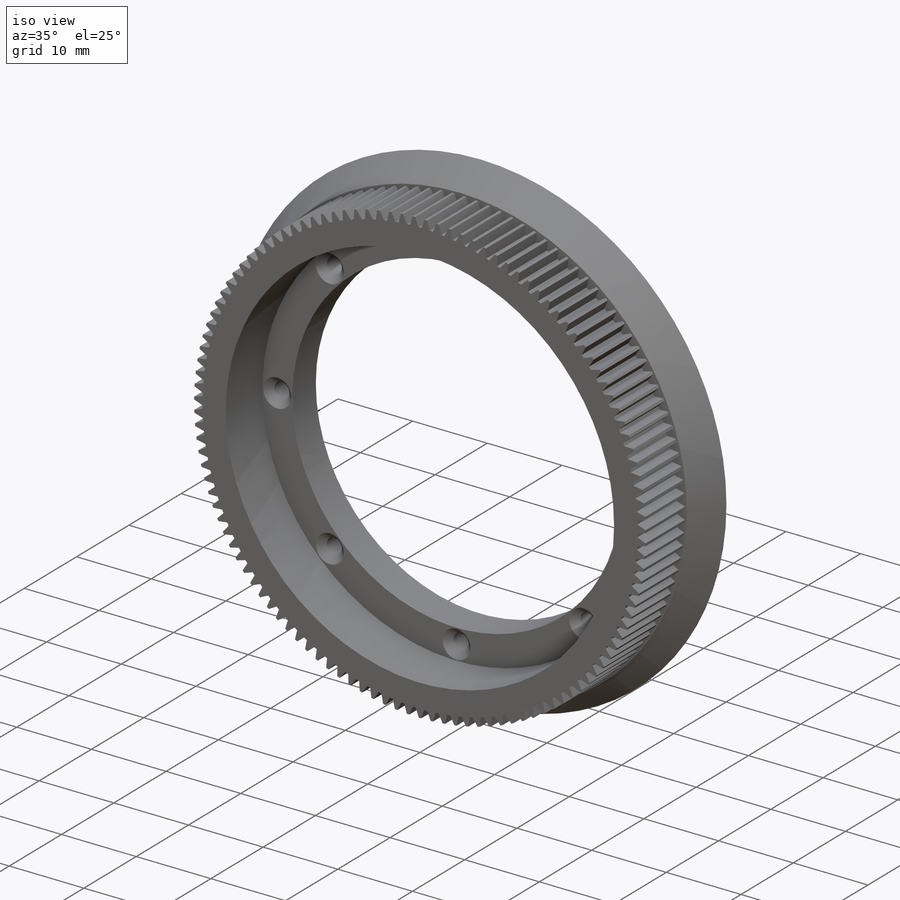
[diagram: iso view]
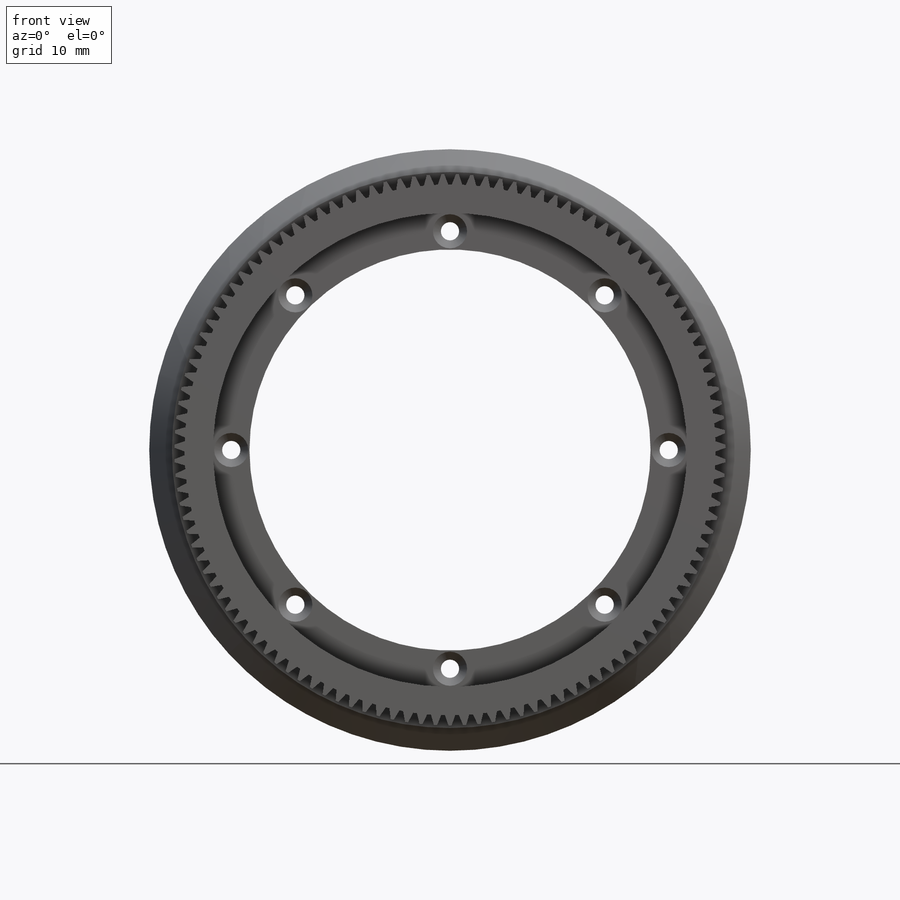
[diagram: front view]
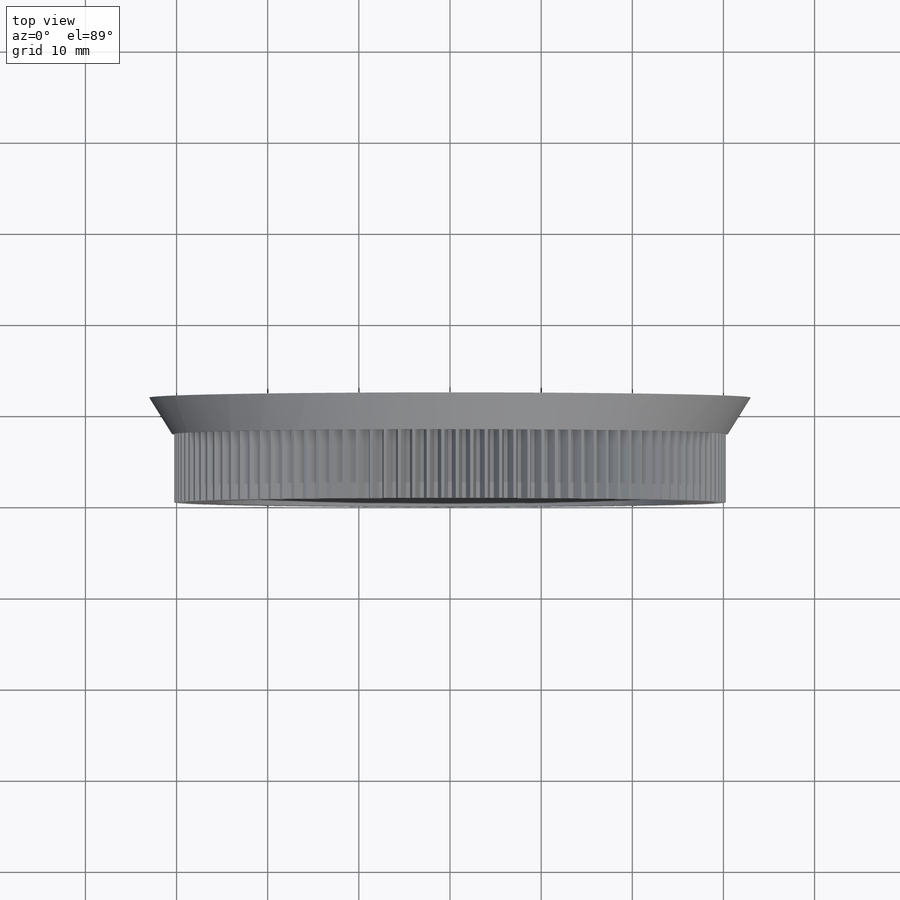
[diagram: top view]
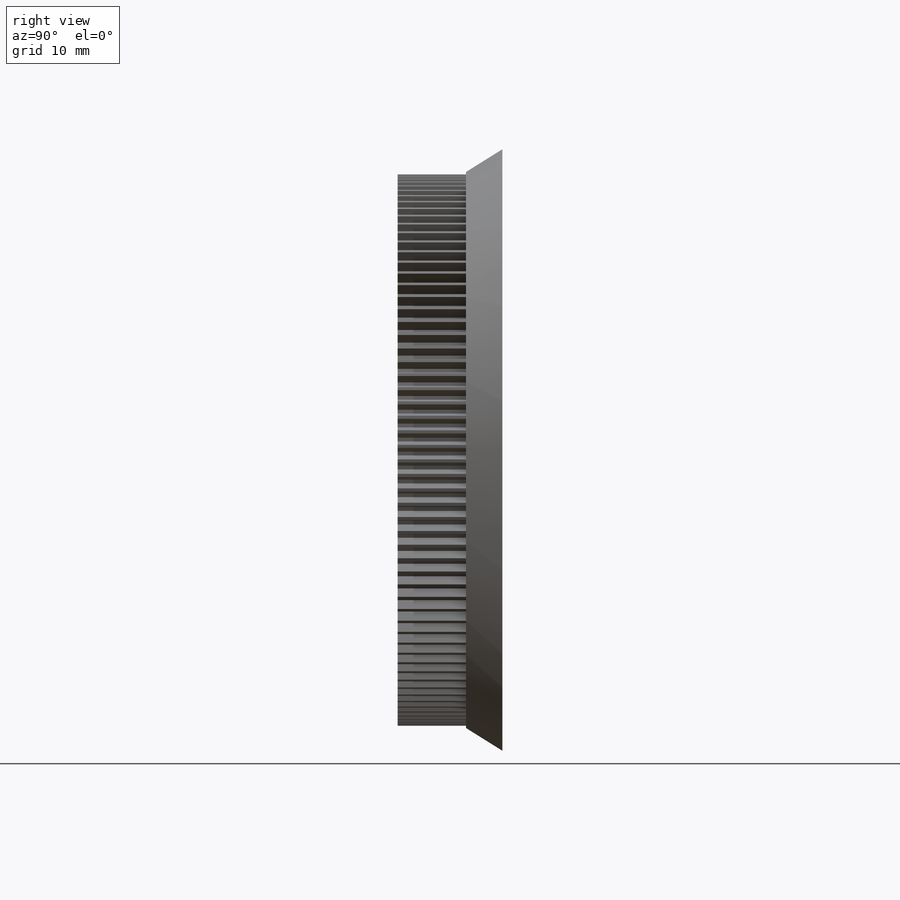
[diagram: right view]
SOLIDWORKS PART (.sldprt)
format: sldprt  version: not decoded by parser v0  size: 1,639,424 bytes
history: native  units: mm
features: plane x7, sketch x7, cut_extrude x5, material x1, move_body x1, hole x1, chamfer x1 + 4 further entries (+14 scaffold rows collapsed; 3 parser-record rows omitted)
feature tree (44):
  scaffold x14  (default folders/planes/origin — collapsed)
  material  "PVC hart"
  plane  "Ebene vorne"
  plane  "Ebene oben"
  plane  "Ebene rechts"
  plane  "Plane1-DIN - Spur gear 0.5M 119T 20PA 5FW ---S113A75H50L3.0N"
  plane  "Plane2-DIN - Spur gear 0.5M 119T 20PA 5FW ---S113A75H50L3.0N"
  plane  "Plane3-DIN - Spur gear 0.5M 119T 20PA 5FW ---S113A75H50L3.0N"
  plane  "FarPln-DIN - Spur gear 0.5M 119T 20PA 5FW ---S113A75H50L3.0N"
  "DIN - Spur gear 0.5M 119T 20PA 5FW ---S113A75H50L3.0N"
  parser-record x3  (decoder bookkeeping rows leaked as tree rows — omitted from the tree; the rows remain in map.json)
  move_body  "Körper-Verschieben/Kopieren4"
  "Deckungsgleich4"
  "Deckungsgleich5"
  "Deckungsgleich6"
  sketch  "Skizze10"  dims[D1=7.5mm D2=100.0mm]
  cut_extrude  "Schnitt-Linear austragen3"  [1 undecoded]
  sketch  "Skizze1"
  cut_extrude  "Schnitt-Linear austragen1"  [1 undecoded]
  sketch  "Skizze2"  dims[D1=7.0mm]
  cut_extrude  "Aufsatz-Linear austragen1"  Depth=4mm
  sketch  "Skizze4"  dims[D1=4.0mm]
  cut_extrude  "Aufsatz-Linear austragen3"  [1 undecoded]
  hole  "Formsenkung für M3 Senkschraube mit Innensechskant1"  Diameter=1.6mm Depth=12.5mm
  sketch  "Skizze11"
  sketch  "Skizze12"  dims[Bohrerdurchmesser=1.6mm Bohrungstiefe=12.5mm Senkdurchmesser (Oben)=3.75mm Senkwinkel (Oben)=90.0deg Spitzenwinkel=118.0deg]
  sketch  "Skizze7"  dims[D1=2.0mm]
  cut_extrude  "Schnitt-Linear austragen2"  [1 undecoded]
  chamfer  "Fase1"  Distance=2.5mm
decode coverage: 8 of 15 modeling features carry decoded parameters; 4 rows unclassified (native names shown)
note: 4 parameter values undecoded
summary: no parameter record found for 4 features
note: suppression state not decoded; provenance and decode notes live in map.json
